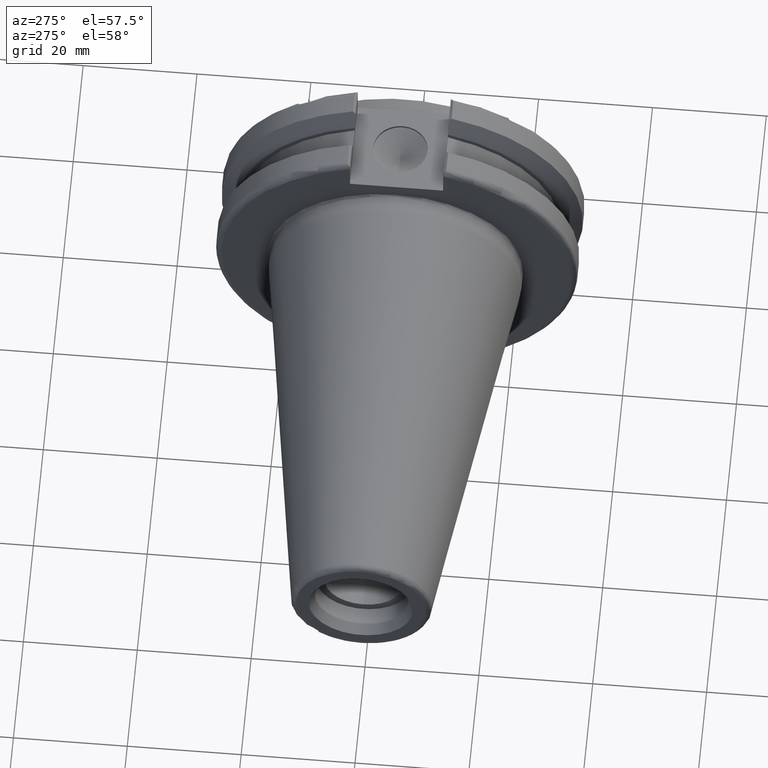
[diagram: clean part render]
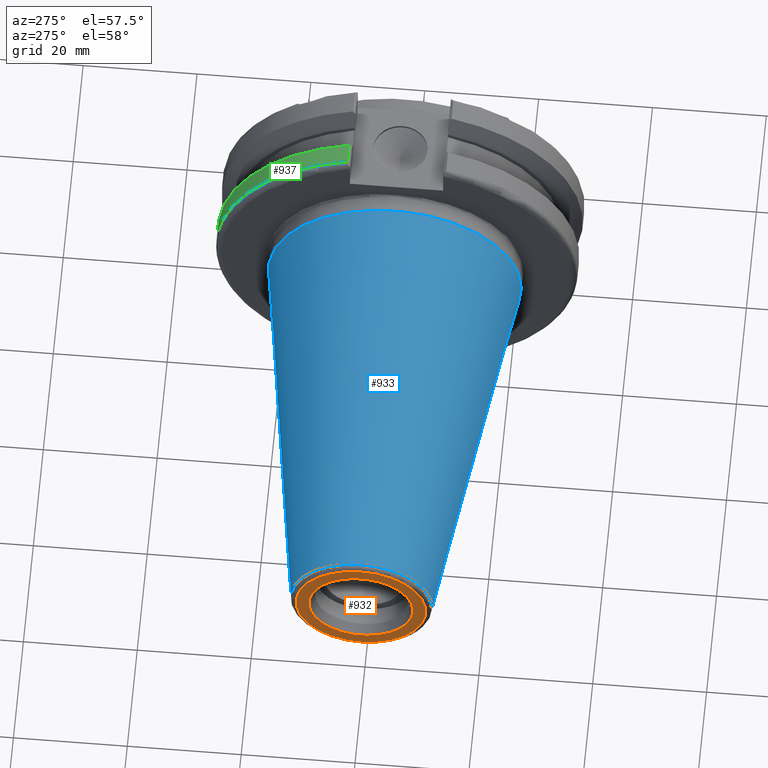
[diagram: same view with three faces highlighted in distinct colors, each labeled with its STEP entity id]
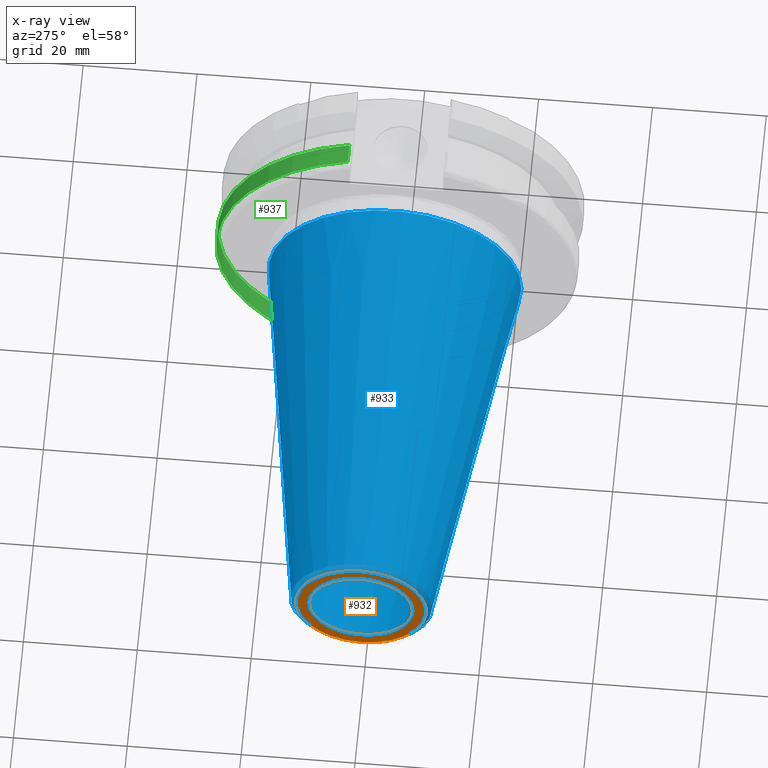
[diagram: x-ray of the same camera — body ghosted, the three highlighted faces saturated]
A machine part, auxiliary view with three faces highlighted in distinct colors.
The next image is the same camera in x-ray (body ghosted, the three faces saturated) — at least one of them is partly hidden behind the body in this view.
Their STEP definitions:

[orange] entity #932 — the highlighted planar face has unit normal (-1, 0, 0).
#17=FACE_BOUND('',#277,.T.);
#183=PLANE('',#1037);
#221=FACE_OUTER_BOUND('',#276,.T.);
#276=EDGE_LOOP('',(#772));
#277=EDGE_LOOP('',(#773));
#335=CIRCLE('',#1036,11.4071305970304);
#336=CIRCLE('',#1038,9.15);
#452=VERTEX_POINT('',#1716);
#453=VERTEX_POINT('',#1720);
#572=EDGE_CURVE('',#452,#452,#335,.T.);
#573=EDGE_CURVE('',#453,#453,#336,.T.);
#772=ORIENTED_EDGE('',*,*,#572,.F.);
#773=ORIENTED_EDGE('',*,*,#573,.T.);
#932=ADVANCED_FACE('',(#221,#17),#183,.T.);
#1036=AXIS2_PLACEMENT_3D('',#1718,#1230,#1231);
#1037=AXIS2_PLACEMENT_3D('',#1719,#1232,#1233);
#1038=AXIS2_PLACEMENT_3D('',#1721,#1234,#1235);
#1230=DIRECTION('center_axis',(1.,0.,0.));
#1231=DIRECTION('ref_axis',(0.,-1.,1.83697019872103E-16));
#1232=DIRECTION('center_axis',(-1.,0.,0.));
#1233=DIRECTION('ref_axis',(0.,0.,1.));
#1234=DIRECTION('center_axis',(1.,0.,0.));
#1235=DIRECTION('ref_axis',(0.,0.,-1.));
#1716=CARTESIAN_POINT('',(-68.25,-1.39697059731091E-15,11.4071305970304));
#1718=CARTESIAN_POINT('Origin',(-68.25,0.,0.));
#1719=CARTESIAN_POINT('Origin',(-68.25,12.271875,0.));
#1720=CARTESIAN_POINT('',(-68.25,-9.15,-1.12055182121983E-15));
#1721=CARTESIAN_POINT('Origin',(-68.25,0.,0.));

[blue] entity #933 — the highlighted conical surface has half-angle 8.297 deg.
#33=CONICAL_SURFACE('',#1039,17.2484375,0.144812498238939);
#80=LINE('',#1723,#136);
#136=VECTOR('',#1238,17.2484375);
#222=FACE_OUTER_BOUND('',#278,.T.);
#278=EDGE_LOOP('',(#774,#775,#776,#777,#778));
#324=CIRCLE('',#1013,22.225);
#332=CIRCLE('',#1033,12.3966635780937);
#333=CIRCLE('',#1034,12.3966635780937);
#413=VERTEX_POINT('',#1513);
#450=VERTEX_POINT('',#1712);
#451=VERTEX_POINT('',#1713);
#520=EDGE_CURVE('',#413,#413,#324,.T.);
#569=EDGE_CURVE('',#450,#451,#332,.T.);
#570=EDGE_CURVE('',#451,#450,#333,.T.);
#574=EDGE_CURVE('',#413,#451,#80,.T.);
#774=ORIENTED_EDGE('',*,*,#520,.F.);
#775=ORIENTED_EDGE('',*,*,#574,.T.);
#776=ORIENTED_EDGE('',*,*,#569,.F.);
#777=ORIENTED_EDGE('',*,*,#570,.F.);
#778=ORIENTED_EDGE('',*,*,#574,.F.);
#933=ADVANCED_FACE('',(#222),#33,.T.);
#1013=AXIS2_PLACEMENT_3D('',#1515,#1164,#1165);
#1033=AXIS2_PLACEMENT_3D('',#1714,#1224,#1225);
#1034=AXIS2_PLACEMENT_3D('',#1715,#1226,#1227);
#1039=AXIS2_PLACEMENT_3D('',#1722,#1236,#1237);
#1164=DIRECTION('center_axis',(1.,0.,0.));
#1165=DIRECTION('ref_axis',(0.,0.,-1.));
#1224=DIRECTION('center_axis',(-1.,0.,0.));
#1225=DIRECTION('ref_axis',(0.,-1.,3.06161699786838E-17));
#1226=DIRECTION('center_axis',(-1.,0.,0.));
#1227=DIRECTION('ref_axis',(0.,-1.,3.06161699786838E-17));
#1236=DIRECTION('center_axis',(1.,0.,0.));
#1237=DIRECTION('ref_axis',(0.,1.,0.));
#1238=DIRECTION('',(-0.989532981063282,0.144306893071729,1.76724974695192E-17));
#1513=CARTESIAN_POINT('',(0.,-22.225,-2.72177751110499E-15));
#1515=CARTESIAN_POINT('Origin',(0.,0.,0.));
#1712=CARTESIAN_POINT('',(-67.3943068930717,-1.5181534371019E-15,12.3966635780937));
#1713=CARTESIAN_POINT('',(-67.3943068930718,-12.3966635780937,-1.5181534371019E-15));
#1714=CARTESIAN_POINT('Origin',(-67.3943068930717,0.,-1.89769179637738E-15));
#1715=CARTESIAN_POINT('Origin',(-67.3943068930717,0.,-1.89769179637738E-15));
#1722=CARTESIAN_POINT('Origin',(-34.125,0.,0.));
#1723=CARTESIAN_POINT('',(-34.125,-17.2484375,-2.11232437746682E-15));

[green] entity #937 — the highlighted cylindrical surface (partial cylindrical patch) has radius 31.75 mm, axis along (1, 0, 0).
#25=CYLINDRICAL_SURFACE('',#1044,31.75);
#79=LINE('',#1707,#135);
#84=LINE('',#1742,#140);
#135=VECTOR('',#1221,10.);
#140=VECTOR('',#1252,10.);
#226=FACE_OUTER_BOUND('',#282,.T.);
#282=EDGE_LOOP('',(#791,#792,#793,#794));
#331=CIRCLE('',#1030,31.75);
#338=CIRCLE('',#1045,31.75);
#447=VERTEX_POINT('',#1680);
#448=VERTEX_POINT('',#1689);
#449=VERTEX_POINT('',#1706);
#457=VERTEX_POINT('',#1741);
#564=EDGE_CURVE('',#447,#448,#331,.T.);
#567=EDGE_CURVE('',#448,#449,#79,.T.);
#581=EDGE_CURVE('',#457,#447,#84,.T.);
#582=EDGE_CURVE('',#449,#457,#338,.T.);
#791=ORIENTED_EDGE('',*,*,#564,.F.);
#792=ORIENTED_EDGE('',*,*,#581,.F.);
#793=ORIENTED_EDGE('',*,*,#582,.F.);
#794=ORIENTED_EDGE('',*,*,#567,.F.);
#937=ADVANCED_FACE('',(#226),#25,.T.);
#1030=AXIS2_PLACEMENT_3D('',#1690,#1217,#1218);
#1044=AXIS2_PLACEMENT_3D('',#1740,#1250,#1251);
#1045=AXIS2_PLACEMENT_3D('',#1743,#1253,#1254);
#1217=DIRECTION('center_axis',(-1.,0.,0.));
#1218=DIRECTION('ref_axis',(0.,1.,1.60812264967664E-16));
#1221=DIRECTION('',(1.,0.,0.));
#1250=DIRECTION('center_axis',(1.,0.,0.));
#1251=DIRECTION('ref_axis',(0.,1.,0.));
#1252=DIRECTION('',(-1.,0.,0.));
#1253=DIRECTION('center_axis',(1.,0.,0.));
#1254=DIRECTION('ref_axis',(0.,0.,-1.));
#1680=CARTESIAN_POINT('',(4.175,8.67204822802685,30.5427254764662));
#1689=CARTESIAN_POINT('',(4.175,8.67204822802685,-30.5427254764662));
#1690=CARTESIAN_POINT('Origin',(4.175,0.,0.));
#1706=CARTESIAN_POINT('',(7.60793323092436,8.67204822802685,-30.5427254764662));
#1707=CARTESIAN_POINT('',(5.39146661546217,8.67204822802685,-30.5427254764662));
#1740=CARTESIAN_POINT('Origin',(5.39146661546217,0.,0.));
#1741=CARTESIAN_POINT('',(7.60793323092436,8.67204822802685,30.5427254764662));
#1742=CARTESIAN_POINT('',(5.39146661546217,8.67204822802685,30.5427254764662));
#1743=CARTESIAN_POINT('Origin',(7.60793323092436,0.,0.));